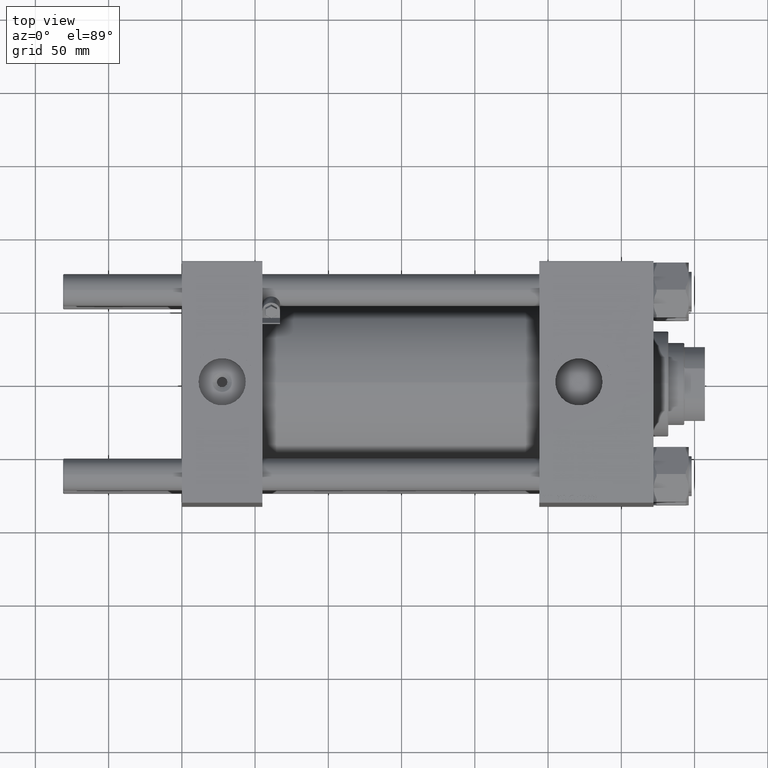
[diagram: clean part render]
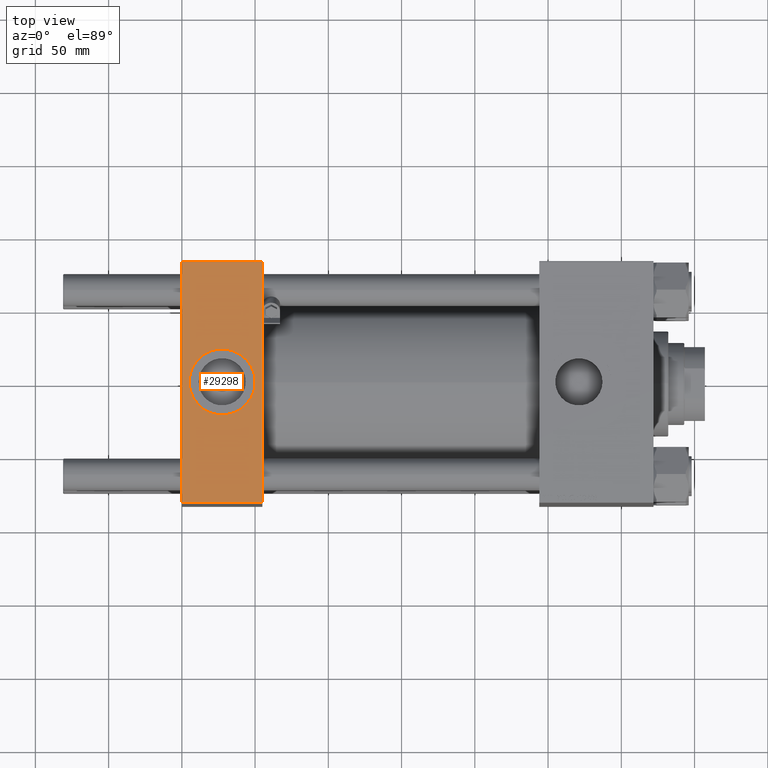
[diagram: same view with one face highlighted and labeled with its STEP entity id]
A machine part, top view. The second image highlights one B-rep face of the part: STEP entity #29298.
In plain terms, the highlighted planar face has unit normal (0, 0, -1).
Its self-contained STEP definition (entity closure, byte-faithful):
#1481 = VERTEX_POINT ( 'NONE', #39518 ) ;
#1966 = CARTESIAN_POINT ( 'NONE',  ( 55.00000000000000000, 82.00000000000005684, 82.50000000000002842 ) ) ;
#2397 = EDGE_CURVE ( 'NONE', #37452, #32717, #23157, .T. ) ;
#2644 = EDGE_CURVE ( 'NONE', #8553, #37452, #29881, .T. ) ;
#5150 = EDGE_CURVE ( 'NONE', #48846, #1481, #39176, .T. ) ;
#6711 = VECTOR ( 'NONE', #19523, 1000.000000000000000 ) ;
#7522 = ORIENTED_EDGE ( 'NONE', *, *, #21770, .T. ) ;
#8490 = VERTEX_POINT ( 'NONE', #40952 ) ;
#8553 = VERTEX_POINT ( 'NONE', #1966 ) ;
#14447 = CARTESIAN_POINT ( 'NONE',  ( 27.50000000000000000, -8.673617379884037050E-15, 82.50000000000001421 ) ) ;
#14805 = DIRECTION ( 'NONE',  ( -1.000000000000000000, 0.000000000000000000, 0.000000000000000000 ) ) ;
#15727 = CARTESIAN_POINT ( 'NONE',  ( 55.00000000000000000, 82.50000000000002842, 82.50000000000002842 ) ) ;
#15851 = VECTOR ( 'NONE', #14805, 1000.000000000000000 ) ;
#17343 = CARTESIAN_POINT ( 'NONE',  ( 0.000000000000000000, -81.99999999999997158, 82.50000000000001421 ) ) ;
#18308 = EDGE_CURVE ( 'NONE', #8553, #8490, #36491, .T. ) ;
#18653 = DIRECTION ( 'NONE',  ( 0.000000000000000000, 0.000000000000000000, 1.000000000000000000 ) ) ;
#19523 = DIRECTION ( 'NONE',  ( 0.000000000000000000, -1.000000000000000000, -8.410780489584519171E-17 ) ) ;
#20691 = ORIENTED_EDGE ( 'NONE', *, *, #2644, .T. ) ;
#21770 = EDGE_CURVE ( 'NONE', #32717, #8490, #43339, .T. ) ;
#22025 = PLANE ( 'NONE',  #45712 ) ;
#22232 = DIRECTION ( 'NONE',  ( 0.000000000000000000, 0.000000000000000000, 1.000000000000000000 ) ) ;
#22886 = VECTOR ( 'NONE', #39632, 1000.000000000000000 ) ;
#23081 = DIRECTION ( 'NONE',  ( 1.000000000000000000, 0.000000000000000000, 0.000000000000000000 ) ) ;
#23157 = LINE ( 'NONE', #31462, #6711 ) ;
#23549 = ORIENTED_EDGE ( 'NONE', *, *, #31739, .F. ) ;
#26942 = CARTESIAN_POINT ( 'NONE',  ( 55.00000000000000000, 82.50000000000002842, 82.50000000000002842 ) ) ;
#29298 = ADVANCED_FACE ( 'NONE', ( #42794, #30081 ), #22025, .F. ) ;
#29825 = DIRECTION ( 'NONE',  ( 0.000000000000000000, 1.000000000000000000, 8.410780489584519171E-17 ) ) ;
#29881 = LINE ( 'NONE', #46503, #15851 ) ;
#30081 = FACE_OUTER_BOUND ( 'NONE', #44566, .T. ) ;
#31462 = CARTESIAN_POINT ( 'NONE',  ( 0.000000000000000000, 82.50000000000002842, 82.50000000000002842 ) ) ;
#31739 = EDGE_CURVE ( 'NONE', #1481, #48846, #42473, .T. ) ;
#32717 = VERTEX_POINT ( 'NONE', #17343 ) ;
#34235 = DIRECTION ( 'NONE',  ( 1.000000000000000000, 0.000000000000000000, 0.000000000000000000 ) ) ;
#36491 = LINE ( 'NONE', #15727, #22886 ) ;
#37452 = VERTEX_POINT ( 'NONE', #42341 ) ;
#37684 = ORIENTED_EDGE ( 'NONE', *, *, #5150, .F. ) ;
#39176 = CIRCLE ( 'NONE', #47497, 22.50000000000000355 ) ;
#39183 = CARTESIAN_POINT ( 'NONE',  ( 55.00000000000000000, -81.99999999999997158, 82.50000000000001421 ) ) ;
#39518 = CARTESIAN_POINT ( 'NONE',  ( 4.999999999999993783, -5.918162081802491483E-15, 82.50000000000001421 ) ) ;
#39632 = DIRECTION ( 'NONE',  ( 0.000000000000000000, -1.000000000000000000, -8.410780489584519171E-17 ) ) ;
#40952 = CARTESIAN_POINT ( 'NONE',  ( 55.00000000000000000, -81.99999999999997158, 82.50000000000001421 ) ) ;
#41285 = VECTOR ( 'NONE', #23081, 1000.000000000000000 ) ;
#42341 = CARTESIAN_POINT ( 'NONE',  ( 0.000000000000000000, 82.00000000000005684, 82.50000000000002842 ) ) ;
#42473 = CIRCLE ( 'NONE', #49127, 22.50000000000000355 ) ;
#42547 = CARTESIAN_POINT ( 'NONE',  ( 27.50000000000000000, -8.673617379884037050E-15, 82.50000000000001421 ) ) ;
#42794 = FACE_BOUND ( 'NONE', #47552, .T. ) ;
#43339 = LINE ( 'NONE', #39183, #41285 ) ;
#44566 = EDGE_LOOP ( 'NONE', ( #45253, #7522, #44680, #20691 ) ) ;
#44680 = ORIENTED_EDGE ( 'NONE', *, *, #18308, .F. ) ;
#45253 = ORIENTED_EDGE ( 'NONE', *, *, #2397, .T. ) ;
#45712 = AXIS2_PLACEMENT_3D ( 'NONE', #26942, #49831, #29825 ) ;
#46503 = CARTESIAN_POINT ( 'NONE',  ( 0.000000000000000000, 82.00000000000005684, 82.50000000000002842 ) ) ;
#47497 = AXIS2_PLACEMENT_3D ( 'NONE', #42547, #18653, #34235 ) ;
#47552 = EDGE_LOOP ( 'NONE', ( #37684, #23549 ) ) ;
#48846 = VERTEX_POINT ( 'NONE', #50217 ) ;
#49127 = AXIS2_PLACEMENT_3D ( 'NONE', #14447, #22232, #50038 ) ;
#49831 = DIRECTION ( 'NONE',  ( 0.000000000000000000, 8.410780489584519171E-17, -1.000000000000000000 ) ) ;
#50038 = DIRECTION ( 'NONE',  ( 1.000000000000000000, 0.000000000000000000, 0.000000000000000000 ) ) ;
#50217 = CARTESIAN_POINT ( 'NONE',  ( 50.00000000000000000, -8.673617379884037050E-15, 82.50000000000001421 ) ) ;